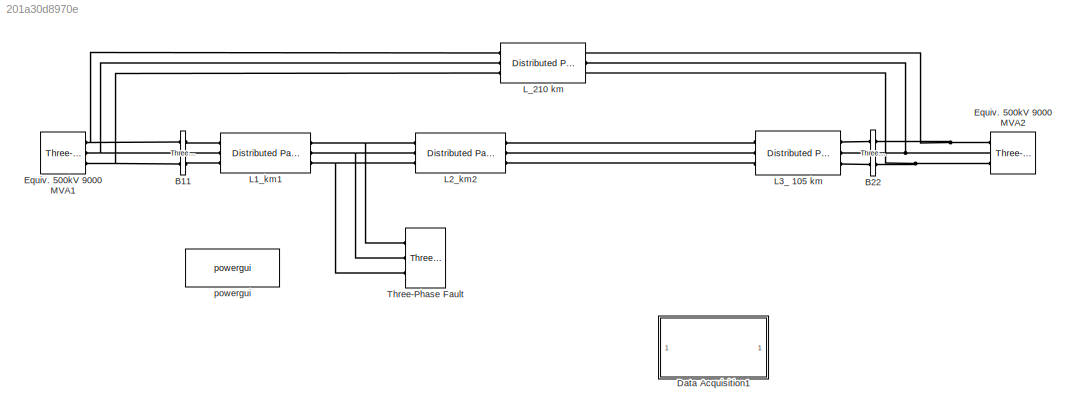
MODEL slx_201a30d8970e
KIND model
CONFIG AbsTol = auto
CONFIG EnableMultiTasking = off
CONFIG FixedStep = Ts
CONFIG MaxStep = auto
CONFIG MinStep = auto
CONFIG PreLoadFcn = gr
CONFIG RelTol = 1e-3
CONFIG SampleTimeConstraint = Unconstrained
CONFIG Solver = ode45
CONFIG SolverName = ode45
CONFIG StartTime = 0.0
CONFIG StopTime = 4/60
BLOCK [Reference] B11  REF=powerlib/Measurements/Three-Phase
V-I Measurement
  Ports = [0, 0, 0, 0, 0, 3, 3]
  SourceBlock = powerlib/Measurements/Three-Phase\nV-I Measurement
  SourceProductBaseCode = PS
  SourceProductName = Simscape Power Systems
  SourceType = Three-Phase VI Measurement
BLOCK [Reference] B22  REF=powerlib/Measurements/Three-Phase
V-I Measurement
  Ports = [0, 0, 0, 0, 0, 3, 3]
  SourceBlock = powerlib/Measurements/Three-Phase\nV-I Measurement
  SourceProductBaseCode = PS
  SourceProductName = Simscape Power Systems
  SourceType = Three-Phase VI Measurement
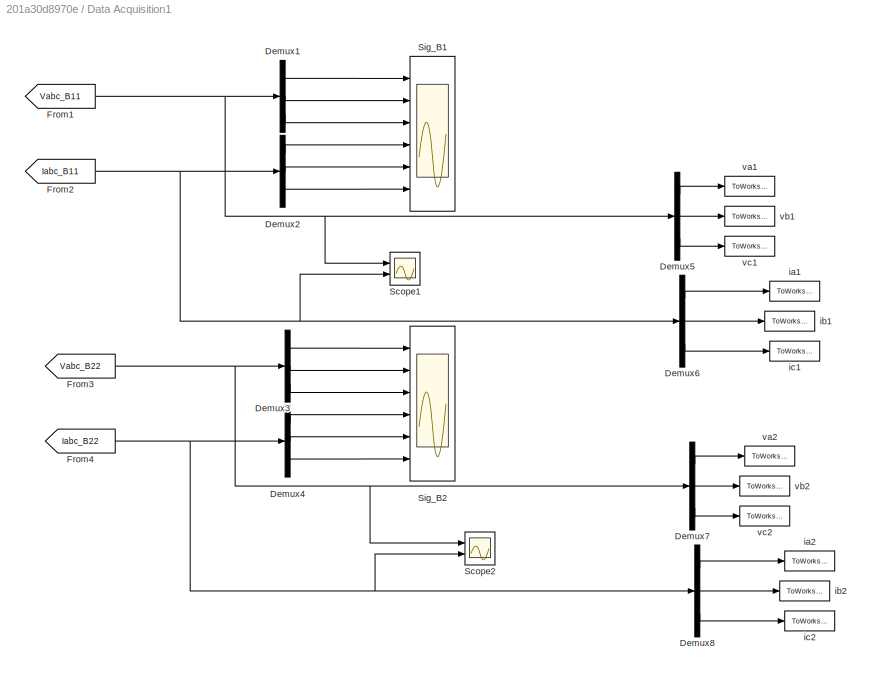
BLOCK [SubSystem] Data Acquisition1
  Ports = []
  RequestExecContextInheritance = off
BLOCK [Demux] Data Acquisition1/Demux1
  DisplayOption = bar
  Outputs = 3
  Ports = [1, 3]
BLOCK [Demux] Data Acquisition1/Demux2
  DisplayOption = bar
  Outputs = 3
  Ports = [1, 3]
BLOCK [Demux] Data Acquisition1/Demux3
  DisplayOption = bar
  Outputs = 3
  Ports = [1, 3]
BLOCK [Demux] Data Acquisition1/Demux4
  DisplayOption = bar
  Outputs = 3
  Ports = [1, 3]
BLOCK [Demux] Data Acquisition1/Demux5
  DisplayOption = bar
  Outputs = 3
  Ports = [1, 3]
BLOCK [Demux] Data Acquisition1/Demux6
  DisplayOption = bar
  Outputs = 3
  Ports = [1, 3]
BLOCK [Demux] Data Acquisition1/Demux7
  DisplayOption = bar
  Outputs = 3
  Ports = [1, 3]
BLOCK [Demux] Data Acquisition1/Demux8
  DisplayOption = bar
  Outputs = 3
  Ports = [1, 3]
BLOCK [From] Data Acquisition1/From1
  CloseFcn = tagdialog Close
  GotoTag = Vabc_B11
  TagVisibility = global
BLOCK [From] Data Acquisition1/From2
  CloseFcn = tagdialog Close
  GotoTag = Iabc_B11
  TagVisibility = global
BLOCK [From] Data Acquisition1/From3
  CloseFcn = tagdialog Close
  GotoTag = Vabc_B22
  TagVisibility = global
BLOCK [From] Data Acquisition1/From4
  CloseFcn = tagdialog Close
  GotoTag = Iabc_B22
  TagVisibility = global
BLOCK [Scope] Data Acquisition1/Scope1
  Floating = off
  NumInputPorts = 2
  Ports = [2]
  ScopeSpecificationString = C++SS(StrPVP('Location','[5, 48, 1371, 727]'),StrPVP('Open','off'),StrPVP('ZoomMode','xonly'),MxPVP('AxesTitles',53,'struct(''axes1'',''%<SignalLabel>'',''axes2'',''%<SignalLabel>'')'),StrPVP('TimeRange','0.07000000000000001'),StrPVP('YMin','-5~-5000'),StrPVP('YMax','5~5000'),StrPVP('SaveName','ScopeData2'),StrPVP('DataFormat','StructureWithTime'),StrPVP('LimitDataPoints','off'),StrPVP('BlockParam...<+80ch>
BLOCK [Scope] Data Acquisition1/Scope2
  Floating = off
  NumInputPorts = 2
  Ports = [2]
  ScopeSpecificationString = C++SS(StrPVP('Location','[5, 48, 1371, 727]'),StrPVP('Open','off'),MxPVP('AxesTitles',53,'struct(''axes1'',''%<SignalLabel>'',''axes2'',''%<SignalLabel>'')'),StrPVP('YMin','-5~-5'),StrPVP('YMax','5~5'),StrPVP('SaveName','ScopeData3'),StrPVP('DataFormat','StructureWithTime'),StrPVP('LimitDataPoints','off'),StrPVP('BlockParamSampleInput','on'),StrPVP('BlockParamSampleTime','0'),StrPVP('Decimation','...<+4ch>
BLOCK [Scope] Data Acquisition1/Sig_B1
  Floating = off
  NumInputPorts = 6
  Ports = [6]
  ScopeSpecificationString = C++SS(StrPVP('Location','[5, 48, 1371, 727]'),StrPVP('Open','off'),MxPVP('AxesTitles',53,'struct(''axes1'',''%<SignalLabel>'',''axes2'',''%<SignalLabel>'',''axes3'',''%<SignalLabel>'',''axes4'',''%<SignalLabel>'',''axes5'',''%<SignalLabel>'',''axes6'',''%<SignalLabel>'')'),StrPVP('TimeRange','0.0666667       '),StrPVP('YMin','-500000~-400000~-500000~-750~-7500~-1250'),StrPVP('YMax','500000~300000~...<+287ch>
BLOCK [Scope] Data Acquisition1/Sig_B2
  Floating = off
  NumInputPorts = 6
  Ports = [6]
  ScopeSpecificationString = C++SS(StrPVP('Location','[1, 48, 1367, 727]'),StrPVP('Open','off'),MxPVP('AxesTitles',53,'struct(''axes1'',''%<SignalLabel>'',''axes2'',''%<SignalLabel>'',''axes3'',''%<SignalLabel>'',''axes4'',''%<SignalLabel>'',''axes5'',''%<SignalLabel>'',''axes6'',''%<SignalLabel>'')'),StrPVP('TimeRange','0.0666667       '),StrPVP('YMin','-500000~-400000~-500000~-750~-3000~-1000'),StrPVP('YMax','500000~500000~...<+279ch>
BLOCK [ToWorkspace] Data Acquisition1/ia1
  MaxDataPoints = inf
  Ports = [1]
  SampleTime = 1/2160
  VariableName = ia1
BLOCK [ToWorkspace] Data Acquisition1/ia2
  MaxDataPoints = inf
  Ports = [1]
  SampleTime = 1/2160
  VariableName = ia2
BLOCK [ToWorkspace] Data Acquisition1/ib1
  MaxDataPoints = inf
  Ports = [1]
  SampleTime = 1/2160
  VariableName = ib1
BLOCK [ToWorkspace] Data Acquisition1/ib2
  MaxDataPoints = inf
  Ports = [1]
  SampleTime = 1/2160
  VariableName = ib2
BLOCK [ToWorkspace] Data Acquisition1/ic1
  MaxDataPoints = inf
  Ports = [1]
  SampleTime = 1/2160
  VariableName = ic1
BLOCK [ToWorkspace] Data Acquisition1/ic2
  MaxDataPoints = inf
  Ports = [1]
  SampleTime = 1/2160
  VariableName = ic2
BLOCK [ToWorkspace] Data Acquisition1/va1
  MaxDataPoints = 5000000
  Ports = [1]
  SampleTime = 1/2160
  VariableName = va1
BLOCK [ToWorkspace] Data Acquisition1/va2
  MaxDataPoints = inf
  Ports = [1]
  SampleTime = 1/2160
  VariableName = va2
BLOCK [ToWorkspace] Data Acquisition1/vb1
  MaxDataPoints = 5000000
  Ports = [1]
  SampleTime = 1/2160
  VariableName = vb1
BLOCK [ToWorkspace] Data Acquisition1/vb2
  MaxDataPoints = inf
  Ports = [1]
  SampleTime = 1/2160
  VariableName = vb2
BLOCK [ToWorkspace] Data Acquisition1/vc1
  MaxDataPoints = 5000000
  Ports = [1]
  SampleTime = 1/2160
  VariableName = vc1
BLOCK [ToWorkspace] Data Acquisition1/vc2
  MaxDataPoints = inf
  Ports = [1]
  SampleTime = 1/2160
  VariableName = vc2
BLOCK [Reference] Equiv. 500kV 9000 MVA1  REF=powerlib/Electrical
Sources/Three-Phase Source
  Ports = [0, 0, 0, 0, 0, 0, 3]
  SourceBlock = powerlib/Electrical\nSources/Three-Phase Source
  SourceProductBaseCode = PS
  SourceProductName = Simscape Power Systems
  SourceType = Three-Phase Source
BLOCK [Reference] Equiv. 500kV 9000 MVA2  REF=powerlib/Electrical
Sources/Three-Phase Source
  Ports = [0, 0, 0, 0, 0, 0, 3]
  SourceBlock = powerlib/Electrical\nSources/Three-Phase Source
  SourceProductBaseCode = PS
  SourceProductName = Simscape Power Systems
  SourceType = Three-Phase Source
BLOCK [Reference] L1_km1  REF=powerlib/Elements/Distributed Parameters Line
  AttributesFormatString = \n
  Ports = [0, 0, 0, 0, 0, 3, 3]
  SourceBlock = powerlib/Elements/Distributed Parameters Line
  SourceProductBaseCode = PS
  SourceProductName = Simscape Power Systems
  SourceType = Distributed Parameters Line
BLOCK [Reference] L2_km2  REF=powerlib/Elements/Distributed Parameters Line
  AttributesFormatString = \n
  Ports = [0, 0, 0, 0, 0, 3, 3]
  SourceBlock = powerlib/Elements/Distributed Parameters Line
  SourceProductBaseCode = PS
  SourceProductName = Simscape Power Systems
  SourceType = Distributed Parameters Line
BLOCK [Reference] L3_ 105 km  REF=powerlib/Elements/Distributed Parameters Line
  AttributesFormatString = \n
  Ports = [0, 0, 0, 0, 0, 3, 3]
  SourceBlock = powerlib/Elements/Distributed Parameters Line
  SourceProductBaseCode = PS
  SourceProductName = Simscape Power Systems
  SourceType = Distributed Parameters Line
BLOCK [Reference] L_210 km  REF=powerlib/Elements/Distributed Parameters Line
  AttributesFormatString = \n
  Ports = [0, 0, 0, 0, 0, 3, 3]
  SourceBlock = powerlib/Elements/Distributed Parameters Line
  SourceProductBaseCode = PS
  SourceProductName = Simscape Power Systems
  SourceType = Distributed Parameters Line
BLOCK [Reference] Three-Phase Fault  REF=powerlib/Elements/Three-Phase Fault
  Ports = [0, 0, 0, 0, 0, 3]
  SourceBlock = powerlib/Elements/Three-Phase Fault
  SourceProductBaseCode = PS
  SourceProductName = Simscape Power Systems
  SourceType = Three-Phase Fault
BLOCK [Reference] powergui  REF=powerlib/powergui
  Ports = []
  Priority = 2
  SourceBlock = powerlib/powergui
  SourceProductBaseCode = PS
  SourceProductName = Simscape Power Systems
  SourceType = PSB option menu block
LINE Data Acquisition1/Demux1:1 -> Data Acquisition1/Sig_B1:1
LINE Data Acquisition1/Demux1:2 -> Data Acquisition1/Sig_B1:2
LINE Data Acquisition1/Demux1:3 -> Data Acquisition1/Sig_B1:3
LINE Data Acquisition1/Demux2:1 -> Data Acquisition1/Sig_B1:4
LINE Data Acquisition1/Demux2:2 -> Data Acquisition1/Sig_B1:5
LINE Data Acquisition1/Demux2:3 -> Data Acquisition1/Sig_B1:6
LINE Data Acquisition1/Demux3:1 -> Data Acquisition1/Sig_B2:1
LINE Data Acquisition1/Demux3:2 -> Data Acquisition1/Sig_B2:2
LINE Data Acquisition1/Demux3:3 -> Data Acquisition1/Sig_B2:3
LINE Data Acquisition1/Demux4:1 -> Data Acquisition1/Sig_B2:4
LINE Data Acquisition1/Demux4:2 -> Data Acquisition1/Sig_B2:5
LINE Data Acquisition1/Demux4:3 -> Data Acquisition1/Sig_B2:6
LINE Data Acquisition1/Demux5:1 -> Data Acquisition1/va1:1
LINE Data Acquisition1/Demux5:2 -> Data Acquisition1/vb1:1
LINE Data Acquisition1/Demux5:3 -> Data Acquisition1/vc1:1
LINE Data Acquisition1/Demux6:1 -> Data Acquisition1/ia1:1
LINE Data Acquisition1/Demux6:2 -> Data Acquisition1/ib1:1
LINE Data Acquisition1/Demux6:3 -> Data Acquisition1/ic1:1
LINE Data Acquisition1/Demux7:1 -> Data Acquisition1/va2:1
LINE Data Acquisition1/Demux7:2 -> Data Acquisition1/vb2:1
LINE Data Acquisition1/Demux7:3 -> Data Acquisition1/vc2:1
LINE Data Acquisition1/Demux8:1 -> Data Acquisition1/ia2:1
LINE Data Acquisition1/Demux8:2 -> Data Acquisition1/ib2:1
LINE Data Acquisition1/Demux8:3 -> Data Acquisition1/ic2:1
NET Data Acquisition1/From1:1 -> Data Acquisition1/Demux1:1, Data Acquisition1/Demux5:1, Data Acquisition1/Scope1:1
NET Data Acquisition1/From2:1 -> Data Acquisition1/Demux2:1, Data Acquisition1/Demux6:1, Data Acquisition1/Scope1:2
NET Data Acquisition1/From3:1 -> Data Acquisition1/Demux3:1, Data Acquisition1/Demux7:1, Data Acquisition1/Scope2:1
NET Data Acquisition1/From4:1 -> Data Acquisition1/Demux4:1, Data Acquisition1/Demux8:1, Data Acquisition1/Scope2:2
PNET net1: B11:LConn1 -- Equiv. 500kV 9000 MVA1:RConn1 -- L_210 km:LConn1
PNET net2: B11:LConn2 -- Equiv. 500kV 9000 MVA1:RConn2 -- L_210 km:LConn2
PNET net3: B11:LConn3 -- Equiv. 500kV 9000 MVA1:RConn3 -- L_210 km:LConn3
PLINE B11:RConn1 -- L1_km1:LConn1
PLINE B11:RConn2 -- L1_km1:LConn2
PLINE B11:RConn3 -- L1_km1:LConn3
PLINE B22:LConn1 -- L3_ 105 km:RConn1
PLINE B22:LConn2 -- L3_ 105 km:RConn2
PLINE B22:LConn3 -- L3_ 105 km:RConn3
PNET net4: B22:RConn1 -- Equiv. 500kV 9000 MVA2:RConn1 -- L_210 km:RConn1
PNET net5: B22:RConn2 -- Equiv. 500kV 9000 MVA2:RConn2 -- L_210 km:RConn2
PNET net6: B22:RConn3 -- Equiv. 500kV 9000 MVA2:RConn3 -- L_210 km:RConn3
PNET net7: L1_km1:RConn1 -- L2_km2:LConn1 -- Three-Phase Fault:LConn1
PNET net8: L1_km1:RConn2 -- L2_km2:LConn2 -- Three-Phase Fault:LConn2
PNET net9: L1_km1:RConn3 -- L2_km2:LConn3 -- Three-Phase Fault:LConn3
PLINE L2_km2:RConn1 -- L3_ 105 km:LConn1
PLINE L2_km2:RConn2 -- L3_ 105 km:LConn2
PLINE L2_km2:RConn3 -- L3_ 105 km:LConn3
note: NET lines group one-source signal fan-out (src -> all destinations, sorted); 1:1 wires keep LINE; PNET lines group multi-terminal physical nets as a canonical sorted terminal list (undirected conserving connections); 2-terminal nets keep the pairwise PLINE form
